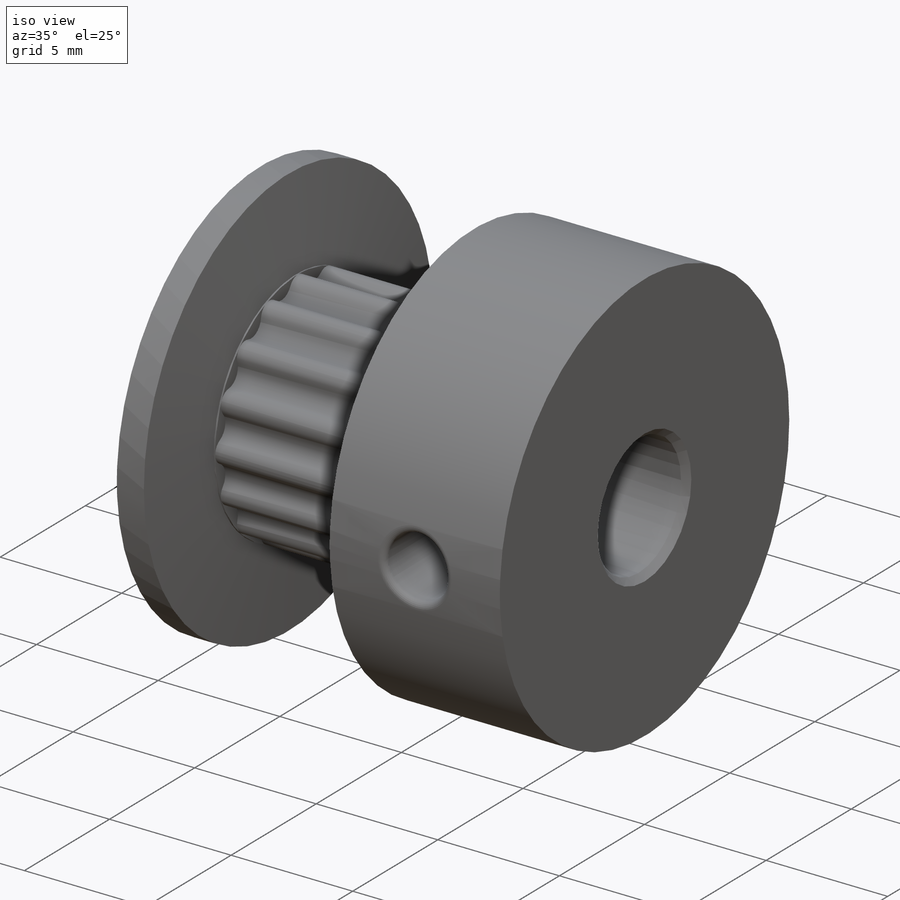
[diagram: iso view]
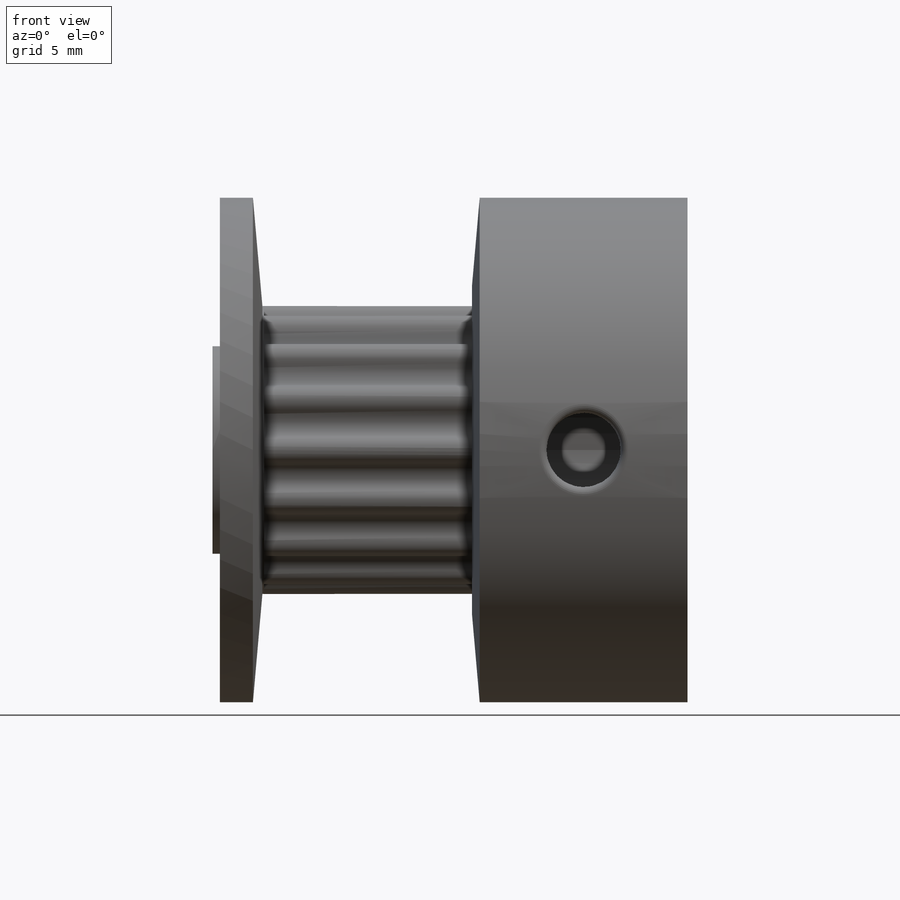
[diagram: front view]
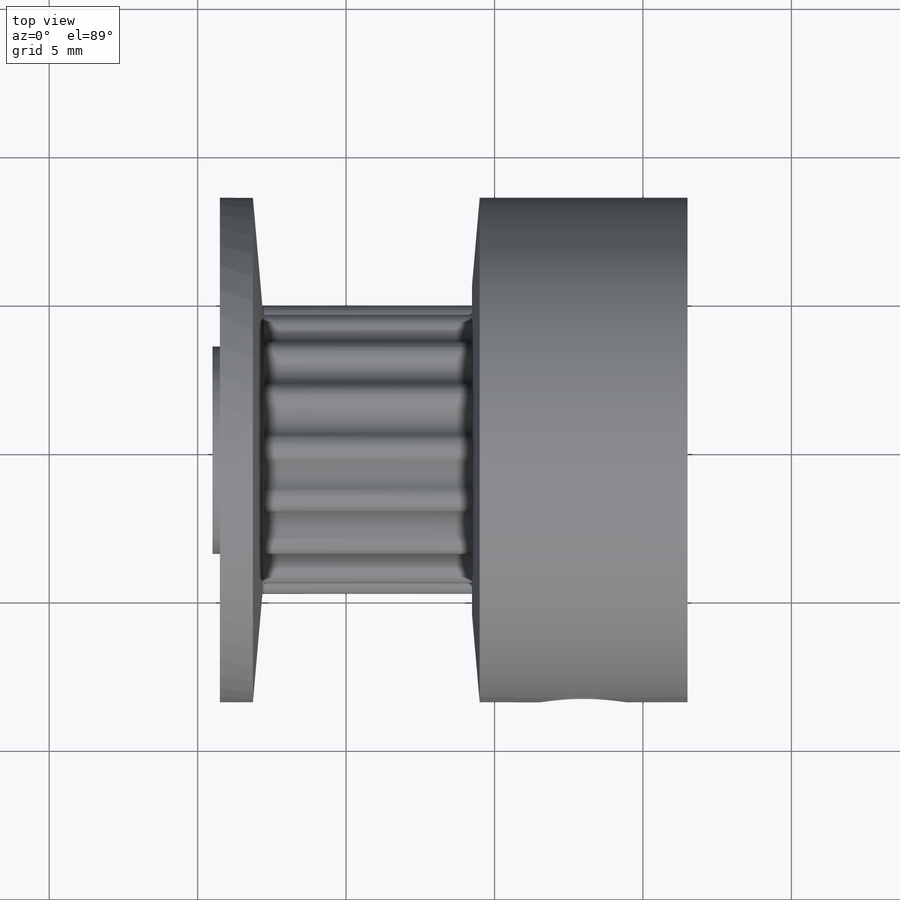
[diagram: top view]
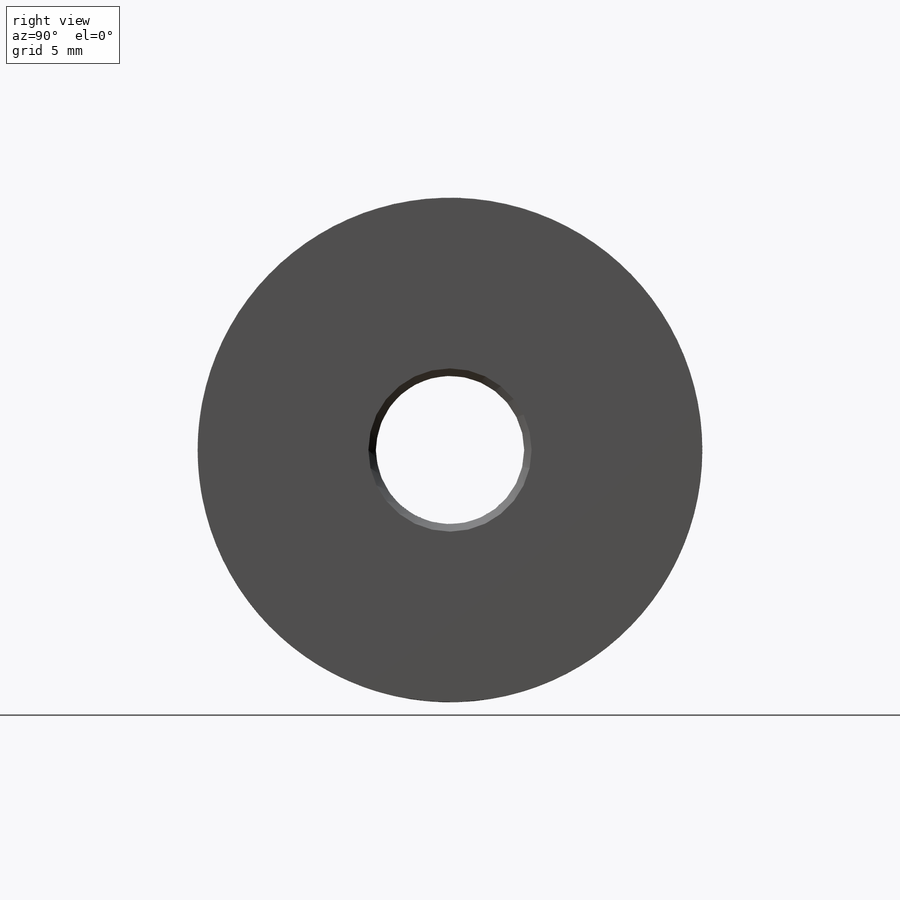
[diagram: right view]
SOLIDWORKS PART (.sldprt)
format: sldprt  version: not decoded by parser v0  size: 311,296 bytes
history: native  units: mm
features: sketch x3, cut_extrude x3, material x1, fillet x1, chamfer x1 (+12 scaffold rows collapsed)
feature tree (21):
  scaffold x12  (default folders/planes/origin — collapsed)
  material  "Material <not specified>"
  sketch  "Sketch1"  dims[D1=2.5mm]
  cut_extrude  "Cut-Extrude1"  [1 undecoded]
  sketch  "Sketch2"  dims[D1=1.0mm]
  cut_extrude  "Cut-Extrude2"  Depth=0.25mm
  sketch  "Sketch3"  dims[c1.D1=~8.508774mm c1.D3=~8.833718mm c2.D1=0.5mm c2.D2=~4.777217mm c3.D2=11.25deg c3.D3=0.25mm c3.D4=~9.691075mm c4.D4=45.0deg c4.D5=~6.540835mm c5.D5=22.5deg]
  cut_extrude  "Cut-Extrude3"  Depth=7mm
  fillet  "Fillet1"  Radius=0.25mm
  chamfer  "Chamfer1"  Distance=0.25mm Angle=45deg
decode coverage: 7 of 8 modeling features carry decoded parameters
note: ~ marks probable driven/reference dimensions
note: 1 parameter value undecoded
note: suppression state not decoded; provenance and decode notes live in map.json
